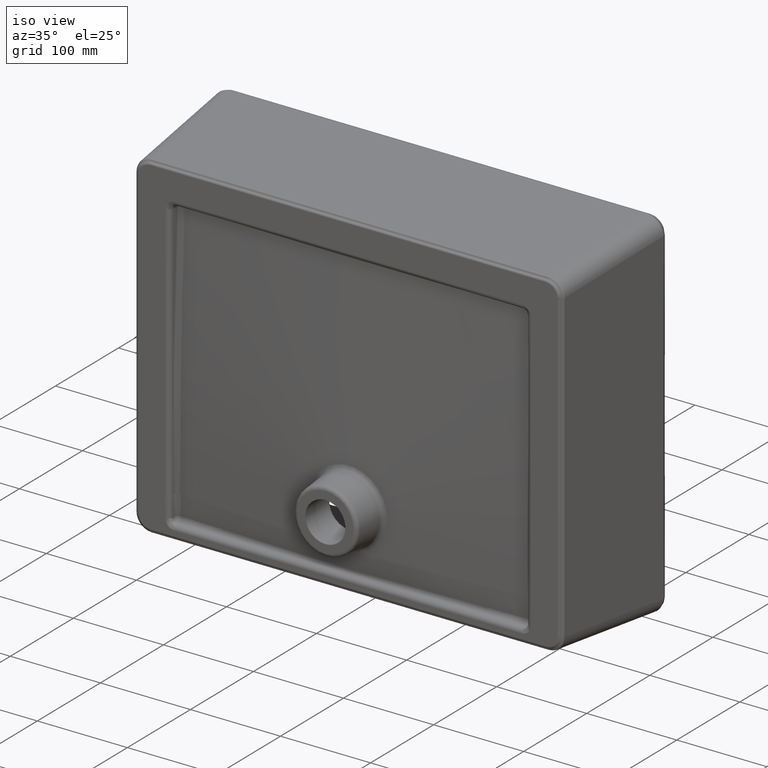
[diagram: clean part render]
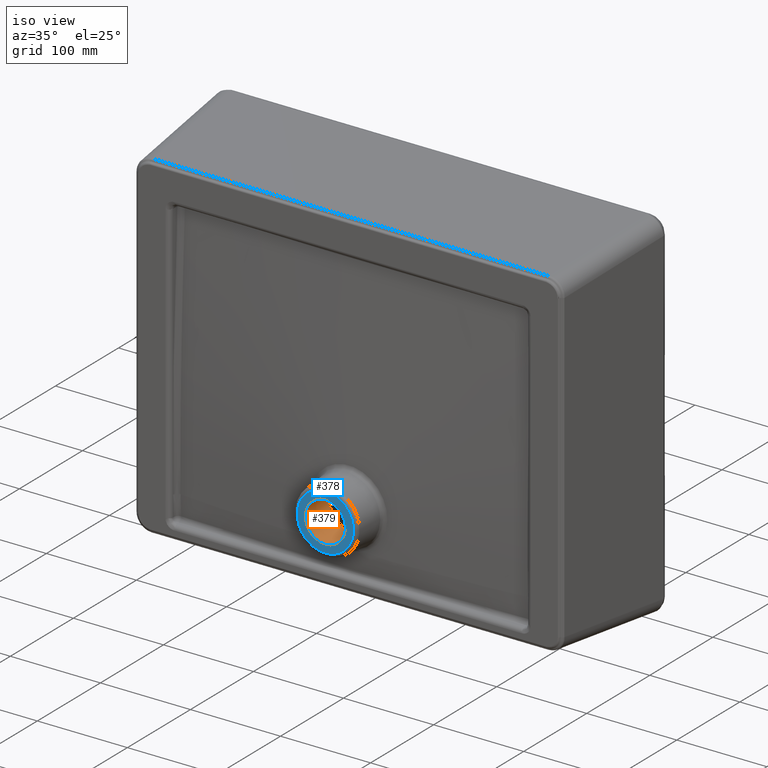
[diagram: same view with the hole feature highlighted: cylindrical wall and planar end face, labeled with their STEP entity ids]
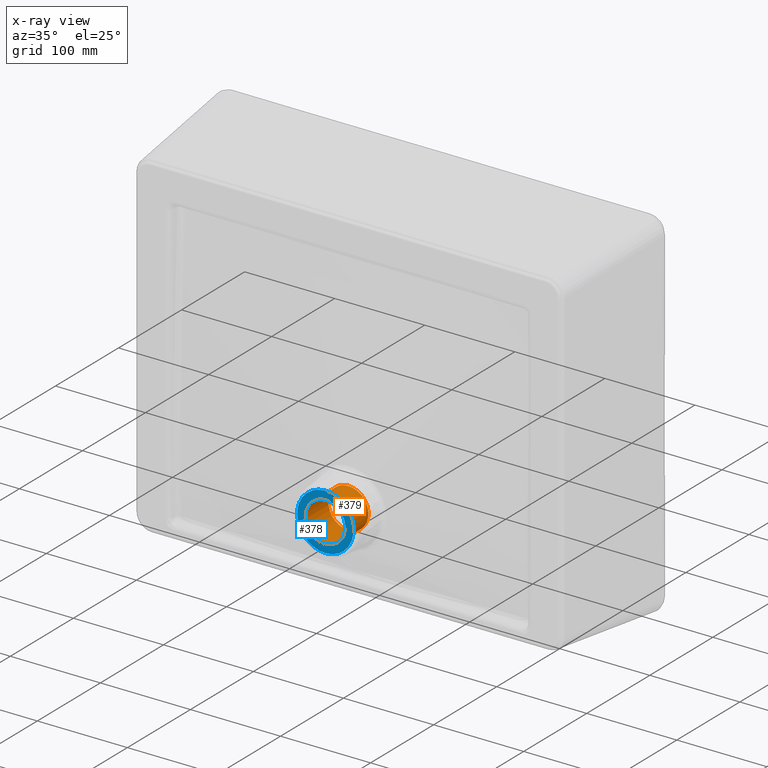
[diagram: x-ray of the same camera — body ghosted, the hole faces saturated]
A machine part, iso view. The highlighted faces form one hole feature of diameter 44.5 mm: the cylindrical wall (entity #379, orange) and its adjacent planar end face (entity #378, blue) — they share a circular edge in the B-rep.
The next image is the same camera in x-ray (body ghosted, the hole faces saturated) — the bore reads through the body.
Wall:
#200=CYLINDRICAL_SURFACE('',#2111,22.25);
#288=FACE_BOUND('',#665,.T.);
#289=FACE_BOUND('',#666,.T.);
#302=CIRCLE('',#2107,22.25);
#304=CIRCLE('',#2110,22.25);
#379=ADVANCED_FACE('',(#288,#289),#200,.F.);
#665=EDGE_LOOP('',(#1060));
#666=EDGE_LOOP('',(#1061));
#1060=ORIENTED_EDGE('',*,*,#1844,.T.);
#1061=ORIENTED_EDGE('',*,*,#1846,.T.);
#1668=VERTEX_POINT('',#3539);
#1670=VERTEX_POINT('',#3544);
#1844=EDGE_CURVE('',#1668,#1668,#302,.T.);
#1846=EDGE_CURVE('',#1670,#1670,#304,.T.);
#2107=AXIS2_PLACEMENT_3D('',#3538,#2237,#2238);
#2110=AXIS2_PLACEMENT_3D('',#3543,#2243,#2244);
#2111=AXIS2_PLACEMENT_3D('',#3545,#2245,#2246);
#2237=DIRECTION('',(0.,-1.,0.));
#2238=DIRECTION('',(0.,0.,-1.));
#2243=DIRECTION('',(0.,1.,0.));
#2244=DIRECTION('',(0.,0.,-1.));
#2245=DIRECTION('',(0.,-1.,0.));
#2246=DIRECTION('',(0.,0.,1.));
#3538=CARTESIAN_POINT('',(0.,-186.,97.));
#3539=CARTESIAN_POINT('',(0.,-186.,74.75));
#3543=CARTESIAN_POINT('',(0.,-149.400418550245,97.));
#3544=CARTESIAN_POINT('',(0.,-149.400418550245,74.75));
#3545=CARTESIAN_POINT('',(0.,-132.45,97.));
End face:
#217=PLANE('',#2109);
#286=FACE_BOUND('',#663,.T.);
#287=FACE_BOUND('',#664,.T.);
#302=CIRCLE('',#2107,22.25);
#303=CIRCLE('',#2108,31.3346753039296);
#378=ADVANCED_FACE('',(#286,#287),#217,.T.);
#663=EDGE_LOOP('',(#1058));
#664=EDGE_LOOP('',(#1059));
#1058=ORIENTED_EDGE('',*,*,#1844,.F.);
#1059=ORIENTED_EDGE('',*,*,#1845,.T.);
#1668=VERTEX_POINT('',#3539);
#1669=VERTEX_POINT('',#3541);
#1844=EDGE_CURVE('',#1668,#1668,#302,.T.);
#1845=EDGE_CURVE('',#1669,#1669,#303,.T.);
#2107=AXIS2_PLACEMENT_3D('',#3538,#2237,#2238);
#2108=AXIS2_PLACEMENT_3D('',#3540,#2239,#2240);
#2109=AXIS2_PLACEMENT_3D('',#3542,#2241,#2242);
#2237=DIRECTION('',(0.,-1.,0.));
#2238=DIRECTION('',(0.,0.,-1.));
#2239=DIRECTION('',(0.,-1.,0.));
#2240=DIRECTION('',(0.,0.,-1.));
#2241=DIRECTION('',(0.,-1.,0.));
#2242=DIRECTION('',(0.,0.,-1.));
#3538=CARTESIAN_POINT('',(0.,-186.,97.));
#3539=CARTESIAN_POINT('',(0.,-186.,74.75));
#3540=CARTESIAN_POINT('',(0.,-186.,97.));
#3541=CARTESIAN_POINT('',(0.,-186.,65.6653246960704));
#3542=CARTESIAN_POINT('',(0.,-186.,37.));